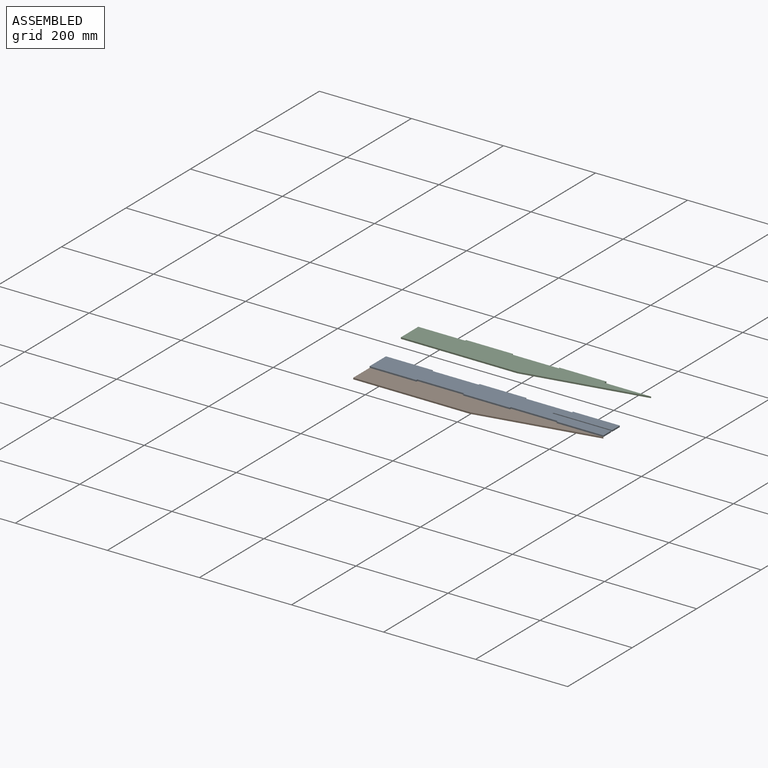
[diagram: assembled view]
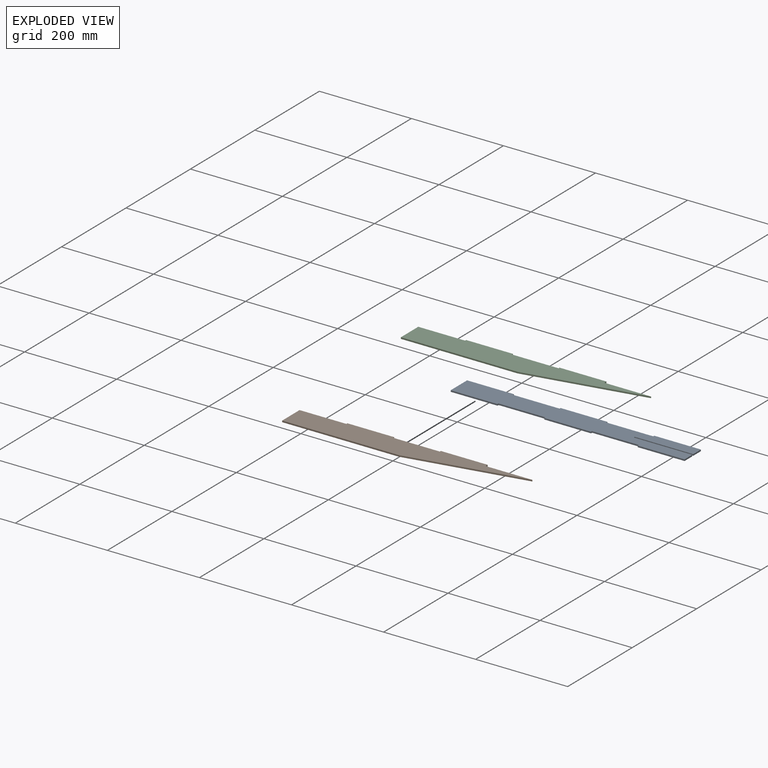
[diagram: exploded view]
GUIDED TOUR — MATED ASSEMBLY (Onshape document abafd52897b467cedcabfa32, AutoMate assembly abafd52897b467cedcabfa32_6b4f606bae9c35903e2a529e_ceaed7f654bc5eaee0819218_default)

This assembly has 3 components, labeled P0..P2 below (a component is one placed occurrence of a part; the same part can appear more than once), held together by 1 mate. A mate is a constraint between two components; its type names the relative motion it leaves free:
  FASTENED — locks the two components together rigidly (no relative motion).
Axis/direction vectors are unit vectors and 'through' points are millimeter coordinates, both in the assembly's world frame.

MATES
  1. FASTENED "Fastened 1": P0 <-> P1, direction (1.000, 0.000, 0.000) through (57.08, 80.30, -97.48) mm

ASSEMBLY ORDER
  1. P2 — the base component [order verified]
  2. P0 [order verified]
  3. P1 [order verified]
Order-tag legend:
  [order verified] — this step's position reverses a verified removal order: the component was checked to insert without passing through the ones already placed.

Of the 3 components, 3 carry the full construction recipe — the FeatureScript program that regenerates the part's solid from scratch; the rest are supplied as boundary geometry only.
Each toured component is shown spotlighted twice — in the assembled view, then in the exploded view, where a leader line traces a displaced component back to its assembled socket (saturated green if recipe-attached, orange if geometry-only; every other component desaturated gray) — followed by its recipe or geometry summary and the mates that hold it.
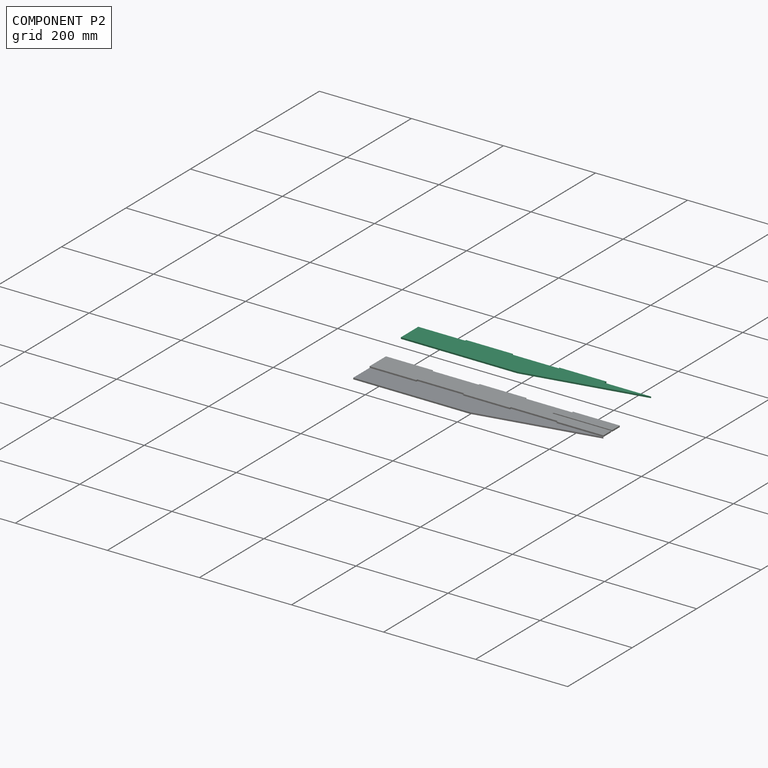
[diagram: component P2 — assembled]
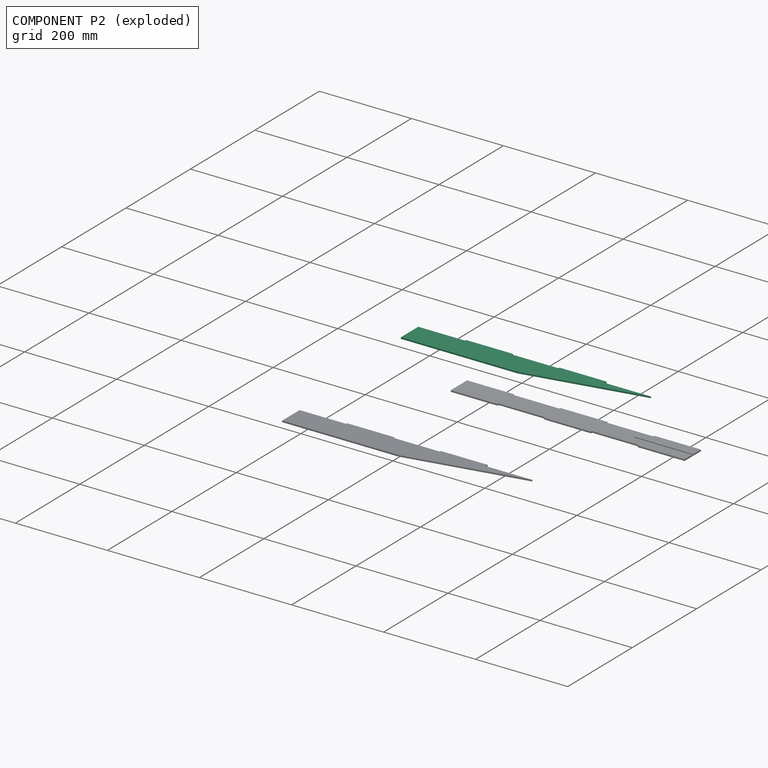
[diagram: component P2 — exploded]
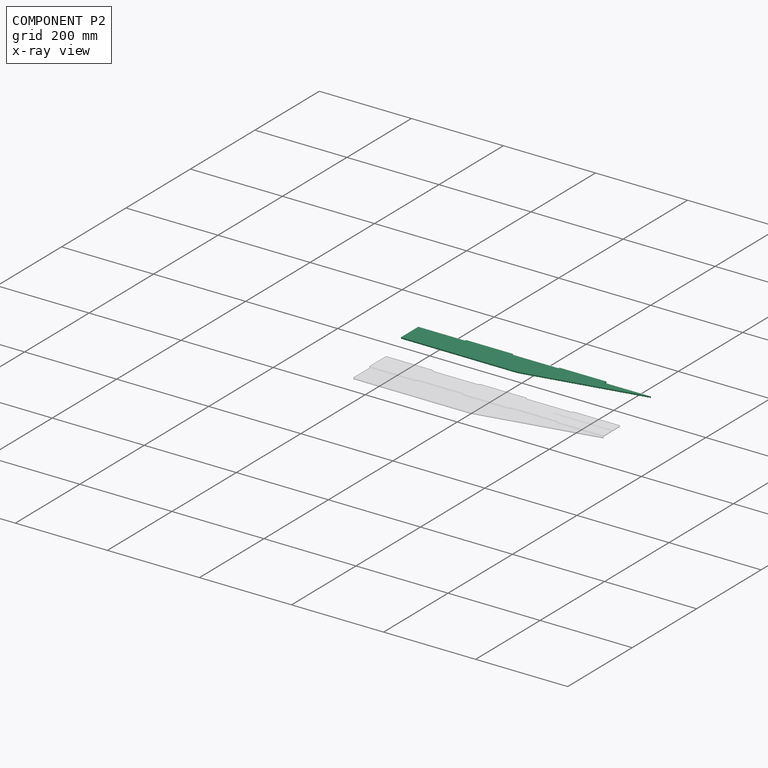
[diagram: component P2 — x-ray view]
COMPONENT P2 — same part as P1 (CADFS 00685697); its construction recipe is shown at P1.
Held by: no mates (free).
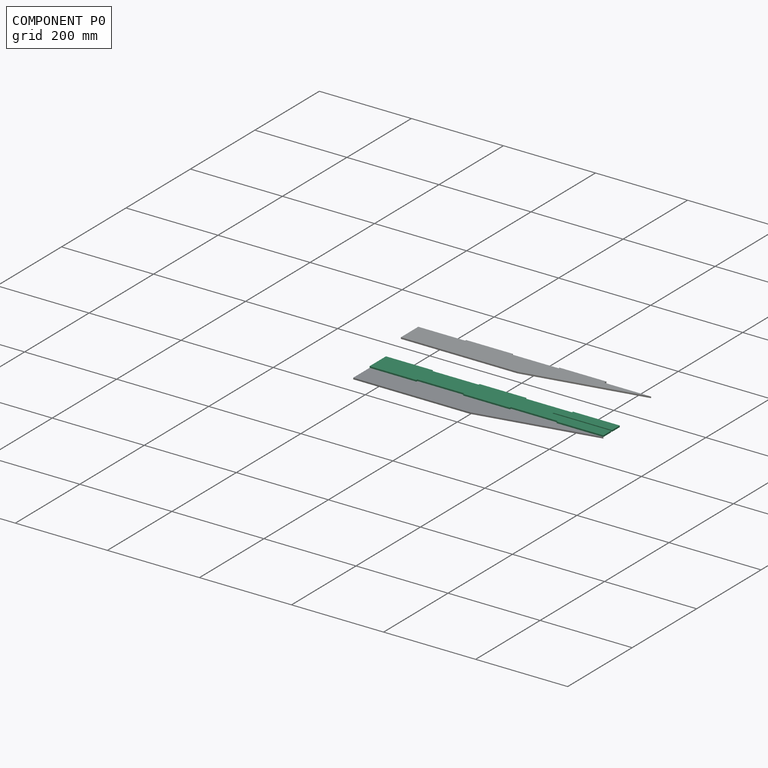
[diagram: component P0 — assembled]
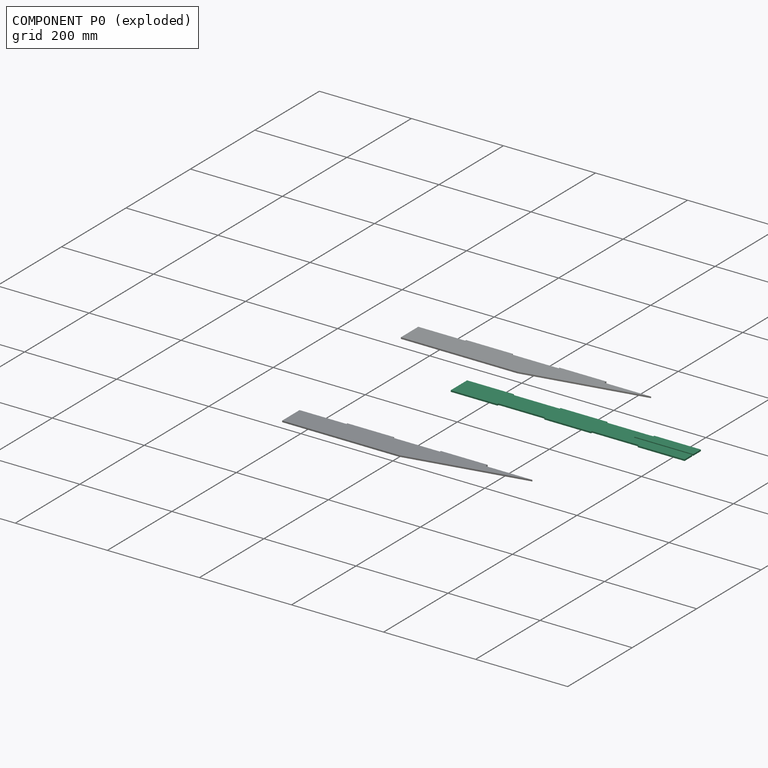
[diagram: component P0 — exploded]
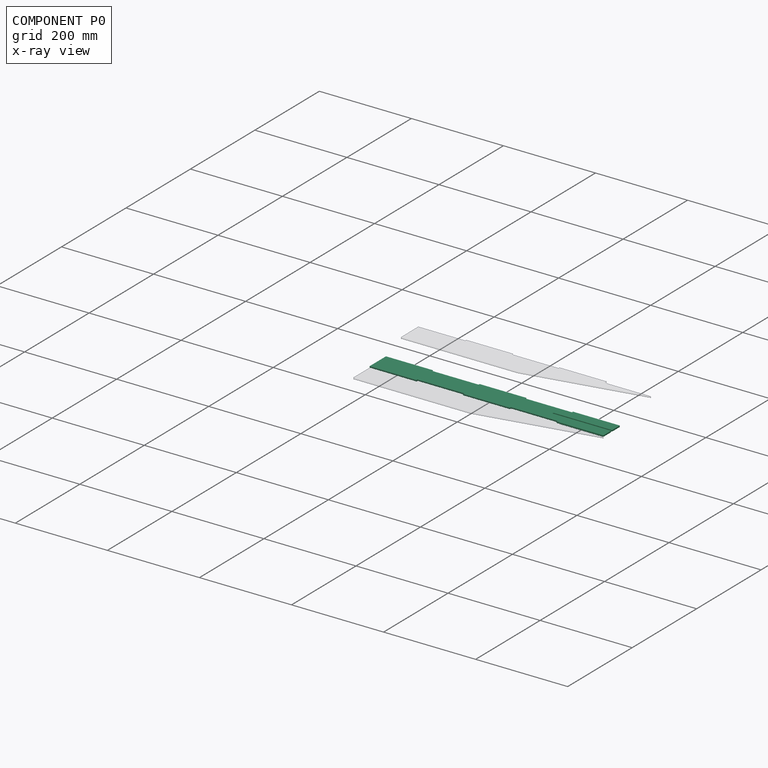
[diagram: component P0 — x-ray view]
COMPONENT P0 — recipe-attached (CADFS 00685299, mesh-verified: the recipe's output STEP matches this component's geometry to below the mesh-comparison resolution (tessellation chordal tolerance ~0.766 mm)).
Held by: FASTENED mate "Fastened 1" to P1.
Construction recipe (FeatureScript — the CAD program that rebuilds this solid; sketch coordinates are in the units given by the * unit suffixes, e.g. mm):

FeatureScript 1511;
import(path : "onshape/std/geometry.fs", version : "1511.0");
import(path : "onshape/std/common.fs", version : "1511.0");
const mm = millimeter;
const VERTEX = EntityType.VERTEX;
const EDGE = EntityType.EDGE;
const FACE = EntityType.FACE;
const BODY = EntityType.BODY;
function v(x, y){return vector(x, y);}
function OD(order){return orderDisambiguation(order);}
function OSD(set){return originalSetDisambiguation(set);}
function TD(topology){return topologyDisambiguation(topology);}
function TDD(query){return trueDependencyDisambiguation(query);}
function sQuery(a, b, c) {return sketchEntityQuery(a, b, c);}

annotation { "Feature Type Name" : "Feature", "Feature Type Description" : "" }
export const myFeature = defineFeature(function(context is Context, id is Id, definition is map)
    precondition{}
    {
        {
            var Q0;
            Q0=qCreatedBy(makeId("Top.planeOp"),FACE);
            var sketch = newSketch(context, id + "F0", { "sketchPlane" : qUnion([Q0])});
            skLineSegment(sketch, "E0.bottom", {"start": v(0, 0) * mm, "end": v(508, 0) * mm});
            skLineSegment(sketch, "E0.top", {"start": v(0, 50.8) * mm, "end": v(508, 50.8) * mm});
            skLineSegment(sketch, "E0.left", {"start": v(0, 0) * mm, "end": v(0, 50.8) * mm});
            skLineSegment(sketch, "E0.right", {"start": v(508, 0) * mm, "end": v(508, 50.8) * mm});
            skSolve(sketch);
        }
        {
            var Q0;
            Q0 = qSketchRegion(id + "F0", true);
            var Q1;
            Q1=makeQuery(id+"F0.imprint","IMPRINT",FACE,{"disambiguationData":[TD([[makeQuery(id+"F0.imprint","IMPRINT",EDGE,{"derivedFrom":sQuery(id+"F0.wireOp",EDGE,"E0.bottom")}),1.0]])]});
            extrude(context, id + "F1", {"entities" : qUnion([Q0, Q1]), "depth" : 3.17 * mm, "offsetDistance" : 25.4 * mm});
        }
        {
            var Q0;
            Q0=makeQuery(id+"F1.opExtrude","CAP_FACE",FACE,{"disambiguationData":[OSD([sQuery(id+"F0.wireOp",EDGE,"E0.bottom"),sQuery(id+"F0.wireOp",EDGE,"E0.top"),sQuery(id+"F0.wireOp",EDGE,"E0.left"),sQuery(id+"F0.wireOp",EDGE,"E0.right")])],"isStart":false});
            var sketch = newSketch(context, id + "F2", { "sketchPlane" : qUnion([Q0])});
            skLineSegment(sketch, "E1.bottom", {"start": v(101.6, 0) * mm, "end": v(203.2, 0) * mm});
            skLineSegment(sketch, "E1.top", {"start": v(101.6, 3.18) * mm, "end": v(203.2, 3.18) * mm});
            skLineSegment(sketch, "E1.left", {"start": v(101.6, 0) * mm, "end": v(101.6, 3.18) * mm});
            skLineSegment(sketch, "E1.right", {"start": v(203.2, 0) * mm, "end": v(203.2, 3.18) * mm});
            skLineSegment(sketch, "E2.bottom", {"start": v(304.8, 0) * mm, "end": v(406.4, 0) * mm});
            skLineSegment(sketch, "E2.top", {"start": v(304.8, 3.18) * mm, "end": v(406.4, 3.18) * mm});
            skLineSegment(sketch, "E2.left", {"start": v(304.8, 0) * mm, "end": v(304.8, 3.18) * mm});
            skLineSegment(sketch, "E2.right", {"start": v(406.4, 0) * mm, "end": v(406.4, 3.18) * mm});
            skSolve(sketch);
        }
        {
            var Q0;
            Q0 = qSketchRegion(id + "F2", true);
            extrude(context, id + "F3", {"entities" : qUnion([Q0]), "operationType" : NewBodyOperationType.REMOVE, "oppositeDirection" : true, "depth" : 25.4 * mm, "offsetDistance" : 25.4 * mm});
        }
        {
            var Q0;
            Q0=makeQuery(id+"F1.opExtrude","CAP_FACE",FACE,{"disambiguationData":[OSD([sQuery(id+"F0.wireOp",EDGE,"E0.bottom"),sQuery(id+"F0.wireOp",EDGE,"E0.top"),sQuery(id+"F0.wireOp",EDGE,"E0.left"),sQuery(id+"F0.wireOp",EDGE,"E0.right")])],"isStart":false});
            var sketch = newSketch(context, id + "F4", { "sketchPlane" : qUnion([Q0])});
            skLineSegment(sketch, "E3.bottom", {"start": v(101.6, 50.8) * mm, "end": v(203.2, 50.8) * mm});
            skLineSegment(sketch, "E3.top", {"start": v(101.6, 47.63) * mm, "end": v(203.2, 47.63) * mm});
            skLineSegment(sketch, "E3.left", {"start": v(101.6, 50.8) * mm, "end": v(101.6, 47.63) * mm});
            skLineSegment(sketch, "E3.right", {"start": v(203.2, 50.8) * mm, "end": v(203.2, 47.63) * mm});
            skLineSegment(sketch, "E4.bottom", {"start": v(304.8, 50.8) * mm, "end": v(406.4, 50.8) * mm});
            skLineSegment(sketch, "E4.top", {"start": v(304.8, 47.63) * mm, "end": v(406.4, 47.63) * mm});
            skLineSegment(sketch, "E4.left", {"start": v(304.8, 50.8) * mm, "end": v(304.8, 47.63) * mm});
            skLineSegment(sketch, "E4.right", {"start": v(406.4, 50.8) * mm, "end": v(406.4, 47.63) * mm});
            skSolve(sketch);
        }
        {
            var Q0;
            Q0 = qSketchRegion(id + "F4", true);
            extrude(context, id + "F5", {"entities" : qUnion([Q0]), "operationType" : NewBodyOperationType.REMOVE, "oppositeDirection" : true, "depth" : 25.4 * mm, "offsetDistance" : 25.4 * mm});
        }
        {
            var Q0;
            Q0=makeQuery(id+"F1.opExtrude","CAP_FACE",FACE,{"disambiguationData":[OSD([sQuery(id+"F0.wireOp",EDGE,"E0.bottom"),sQuery(id+"F0.wireOp",EDGE,"E0.top"),sQuery(id+"F0.wireOp",EDGE,"E0.left"),sQuery(id+"F0.wireOp",EDGE,"E0.right")])],"isStart":false});
            var sketch = newSketch(context, id + "F6", { "sketchPlane" : qUnion([Q0])});
            skLineSegment(sketch, "E5.bottom", {"start": v(508, 23.81) * mm, "end": v(381, 23.81) * mm});
            skLineSegment(sketch, "E5.top", {"start": v(508, 26.99) * mm, "end": v(381, 26.99) * mm});
            skLineSegment(sketch, "E5.left", {"start": v(508, 23.81) * mm, "end": v(508, 26.99) * mm});
            skLineSegment(sketch, "E5.right", {"start": v(381, 23.81) * mm, "end": v(381, 26.99) * mm});
            skSolve(sketch);
        }
        {
            var Q0;
            Q0 = qSketchRegion(id + "F6", true);
            extrude(context, id + "F7", {"entities" : qUnion([Q0]), "operationType" : NewBodyOperationType.REMOVE, "oppositeDirection" : true, "depth" : 25.4 * mm, "offsetDistance" : 25.4 * mm});
        }
    });
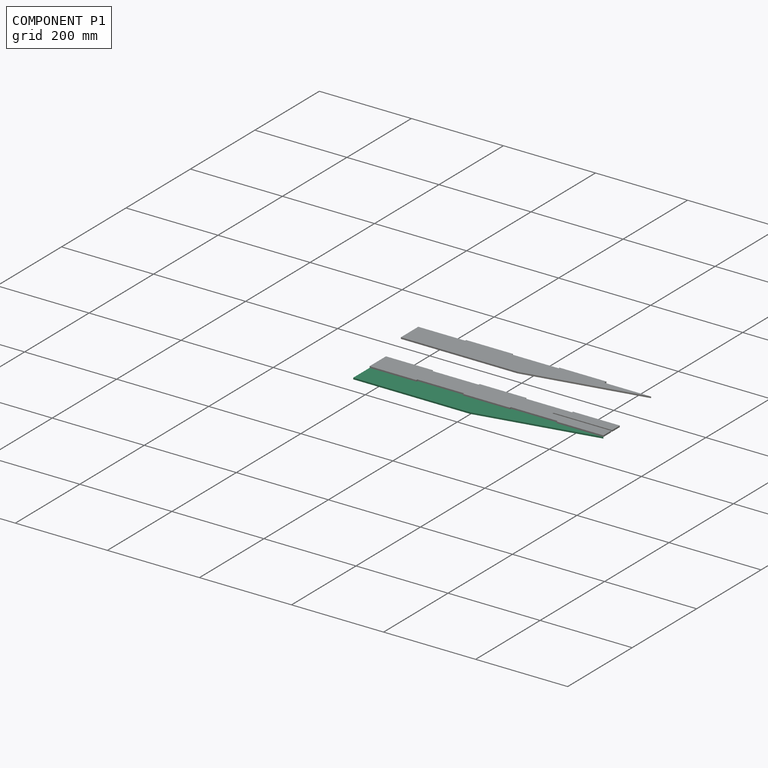
[diagram: component P1 — assembled]
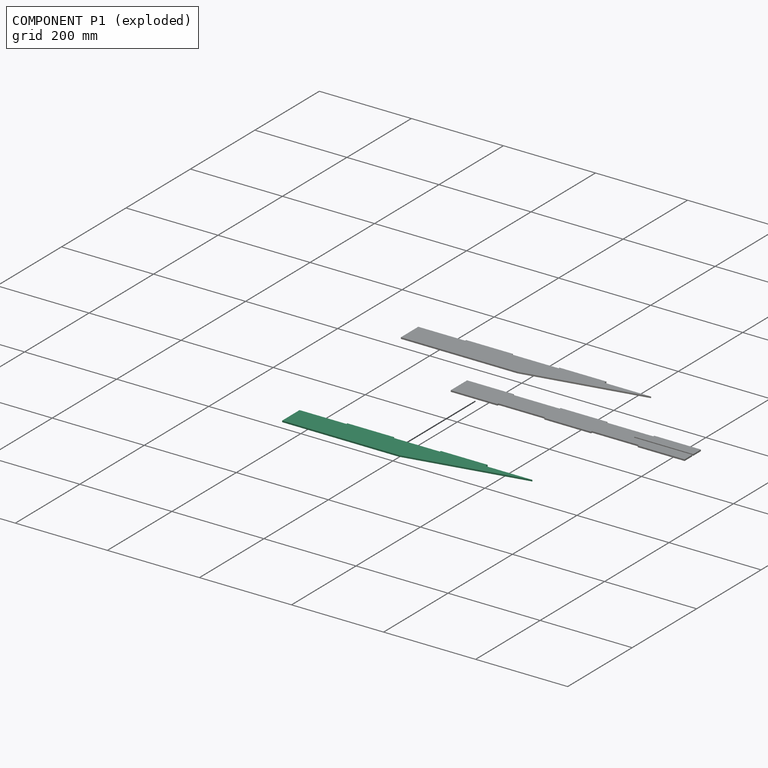
[diagram: component P1 — exploded]
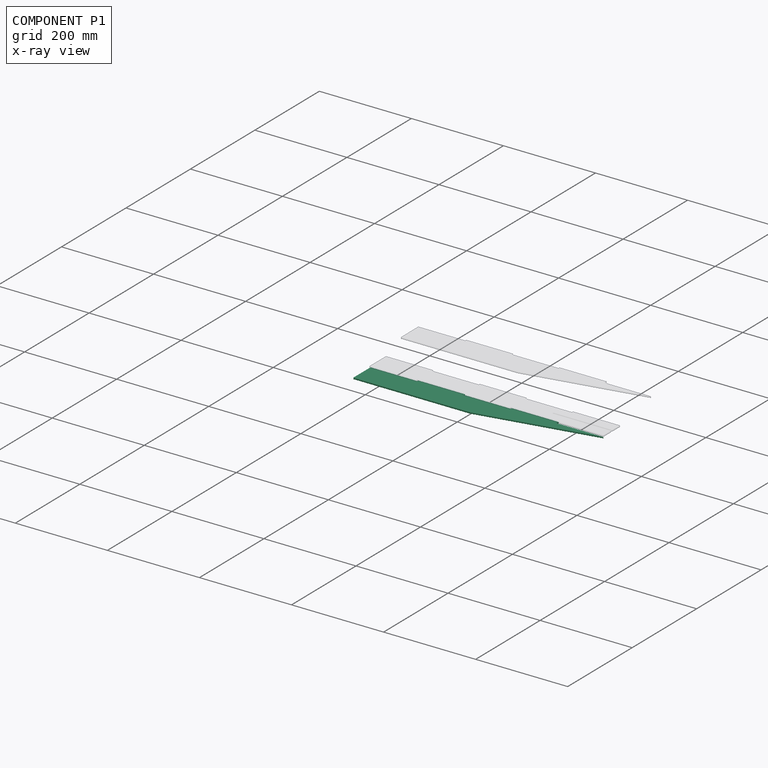
[diagram: component P1 — x-ray view]
COMPONENT P1 — recipe-attached (CADFS 00685697, mesh-verified: the recipe's output STEP matches this component's geometry to below the mesh-comparison resolution (tessellation chordal tolerance ~0.767 mm)).
Held by: FASTENED mate "Fastened 1" to P0.
Construction recipe (FeatureScript — the CAD program that rebuilds this solid; sketch coordinates are in the units given by the * unit suffixes, e.g. mm):

FeatureScript 1511;
import(path : "onshape/std/geometry.fs", version : "1511.0");
import(path : "onshape/std/common.fs", version : "1511.0");
const mm = millimeter;
const VERTEX = EntityType.VERTEX;
const EDGE = EntityType.EDGE;
const FACE = EntityType.FACE;
const BODY = EntityType.BODY;
function v(x, y){return vector(x, y);}
function OD(order){return orderDisambiguation(order);}
function OSD(set){return originalSetDisambiguation(set);}
function TD(topology){return topologyDisambiguation(topology);}
function TDD(query){return trueDependencyDisambiguation(query);}
function sQuery(a, b, c) {return sketchEntityQuery(a, b, c);}

annotation { "Feature Type Name" : "Feature", "Feature Type Description" : "" }
export const myFeature = defineFeature(function(context is Context, id is Id, definition is map)
    precondition{}
    {
        {
            var Q0;
            Q0=qCreatedBy(makeId("Top.planeOp"),FACE);
            var sketch = newSketch(context, id + "F0", { "sketchPlane" : qUnion([Q0])});
            skLineSegment(sketch, "E0.bottom", {"start": v(0, 0) * mm, "end": v(508, 0) * mm});
            skLineSegment(sketch, "E0.top", {"start": v(0, 57.15) * mm, "end": v(508, 57.15) * mm});
            skLineSegment(sketch, "E0.left", {"start": v(0, 0) * mm, "end": v(0, 57.15) * mm});
            skLineSegment(sketch, "E0.right", {"start": v(508, 0) * mm, "end": v(508, 57.15) * mm});
            skSolve(sketch);
        }
        {
            var Q0;
            Q0 = qSketchRegion(id + "F0", true);
            var Q1;
            Q1=makeQuery(id+"F0.imprint","IMPRINT",FACE,{"disambiguationData":[TD([[makeQuery(id+"F0.imprint","IMPRINT",EDGE,{"derivedFrom":sQuery(id+"F0.wireOp",EDGE,"E0.bottom")}),1.0]])]});
            extrude(context, id + "F1", {"entities" : qUnion([Q0, Q1]), "depth" : 3.17 * mm, "offsetDistance" : 25.4 * mm});
        }
        {
            var Q0;
            Q0=makeQuery(id+"F1.opExtrude","CAP_FACE",FACE,{"disambiguationData":[OSD([sQuery(id+"F0.wireOp",EDGE,"E0.bottom"),sQuery(id+"F0.wireOp",EDGE,"E0.top"),sQuery(id+"F0.wireOp",EDGE,"E0.left"),sQuery(id+"F0.wireOp",EDGE,"E0.right")])],"isStart":false});
            var sketch = newSketch(context, id + "F2", { "sketchPlane" : qUnion([Q0])});
            skLineSegment(sketch, "E1.left", {"start": v(101.6, 57.15) * mm, "end": v(101.6, 53.98) * mm});
            skLineSegment(sketch, "E1.right", {"start": v(203.2, 57.15) * mm, "end": v(203.2, 53.98) * mm});
            skLineSegment(sketch, "E2.left", {"start": v(304.8, 57.15) * mm, "end": v(304.8, 53.98) * mm});
            skLineSegment(sketch, "E2.right", {"start": v(406.4, 57.15) * mm, "end": v(406.4, 53.98) * mm});
            skLineSegment(sketch, "E3.bottom", {"start": v(101.6, 53.98) * mm, "end": v(0, 53.98) * mm});
            skLineSegment(sketch, "E3.top", {"start": v(101.6, 57.15) * mm, "end": v(0, 57.15) * mm});
            skLineSegment(sketch, "E3.left", {"start": v(101.6, 53.98) * mm, "end": v(101.6, 57.15) * mm});
            skLineSegment(sketch, "E3.right", {"start": v(0, 53.98) * mm, "end": v(0, 57.15) * mm});
            skLineSegment(sketch, "E4.bottom", {"start": v(203.2, 53.98) * mm, "end": v(304.8, 53.98) * mm});
            skLineSegment(sketch, "E4.top", {"start": v(203.2, 57.15) * mm, "end": v(304.8, 57.15) * mm});
            skLineSegment(sketch, "E4.left", {"start": v(203.2, 53.98) * mm, "end": v(203.2, 57.15) * mm});
            skLineSegment(sketch, "E4.right", {"start": v(304.8, 53.98) * mm, "end": v(304.8, 57.15) * mm});
            skLineSegment(sketch, "E5.bottom", {"start": v(406.4, 53.98) * mm, "end": v(508, 53.98) * mm});
            skLineSegment(sketch, "E5.top", {"start": v(406.4, 57.15) * mm, "end": v(508, 57.15) * mm});
            skLineSegment(sketch, "E5.left", {"start": v(406.4, 53.98) * mm, "end": v(406.4, 57.15) * mm});
            skLineSegment(sketch, "E5.right", {"start": v(508, 53.98) * mm, "end": v(508, 57.15) * mm});
            skSolve(sketch);
        }
        {
            var Q0;
            Q0=makeQuery(id+"F1.opExtrude","CAP_FACE",FACE,{"disambiguationData":[OSD([sQuery(id+"F0.wireOp",EDGE,"E0.bottom"),sQuery(id+"F0.wireOp",EDGE,"E0.top"),sQuery(id+"F0.wireOp",EDGE,"E0.left"),sQuery(id+"F0.wireOp",EDGE,"E0.right")])],"isStart":false});
            var sketch = newSketch(context, id + "F3", { "sketchPlane" : qUnion([Q0])});
            skLineSegment(sketch, "E6", {"start": v(254, 0) * mm, "end": v(508, 50.8) * mm});
            skLineSegment(sketch, "E7", {"start": v(254, 0) * mm, "end": v(508, 0) * mm});
            skLineSegment(sketch, "E8", {"start": v(508, 0) * mm, "end": v(508, 57.15) * mm});
            skSolve(sketch);
        }
        {
            var Q0;
            {var subQ0=sQuery(id+"F3.wireOp",EDGE,"E6");Q0=makeQuery(id+"F3.imprint","IMPRINT",FACE,{"disambiguationData":[TD([[makeQuery(id+"F3.imprint","IMPRINT",EDGE,{"derivedFrom":subQ0}),-1.0]])]});}
            extrude(context, id + "F4", {"entities" : qUnion([Q0]), "operationType" : NewBodyOperationType.REMOVE, "oppositeDirection" : true, "depth" : 25.4 * mm, "offsetDistance" : 25.4 * mm});
        }
        {
            var Q0;
            Q0 = qSketchRegion(id + "F2", true);
            extrude(context, id + "F5", {"entities" : qUnion([Q0]), "operationType" : NewBodyOperationType.REMOVE, "oppositeDirection" : true, "depth" : 25.4 * mm, "offsetDistance" : 25.4 * mm});
        }
        {
            var Q0;
            Q0=makeQuery(id+"F1.opExtrude","CAP_FACE",FACE,{"disambiguationData":[OSD([sQuery(id+"F0.wireOp",EDGE,"E0.bottom"),sQuery(id+"F0.wireOp",EDGE,"E0.top"),sQuery(id+"F0.wireOp",EDGE,"E0.left"),sQuery(id+"F0.wireOp",EDGE,"E0.right")])],"isStart":false});
            var sketch = newSketch(context, id + "F6", { "sketchPlane" : qUnion([Q0])});
            skLineSegment(sketch, "E9.bottom", {"start": v(508, 50.8) * mm, "end": v(406.4, 50.8) * mm});
            skLineSegment(sketch, "E9.top", {"start": v(508, 53.98) * mm, "end": v(406.4, 53.98) * mm});
            skLineSegment(sketch, "E9.left", {"start": v(508, 50.8) * mm, "end": v(508, 53.98) * mm});
            skLineSegment(sketch, "E9.right", {"start": v(406.4, 50.8) * mm, "end": v(406.4, 53.98) * mm});
            skSolve(sketch);
        }
        {
            var Q0;
            Q0 = qSketchRegion(id + "F6", true);
            extrude(context, id + "F7", {"entities" : qUnion([Q0]), "operationType" : NewBodyOperationType.REMOVE, "oppositeDirection" : true, "depth" : 25.4 * mm, "offsetDistance" : 25.4 * mm});
        }
    });
PROVENANCE & LICENSES
Assembly (occurrences, transforms, mates, per-part STEP geometry): AutoMate dataset, Zenodo record 7776208, CC0.
Construction recipes: CADFS (HuggingFace VladPyatov/CADFS, CC-BY-4.0, layered over the ABC dataset), FeatureScript reconstruction programs keyed by ABC model id.
Join: ABC meta listings map ABC model id -> Onshape documentId; within a shared document, parts are matched by geometric signature (bounding-box dims + volume at 0.1% relative tolerance, exact B-rep face/solid counts).
Verification: 3 of this assembly's 3 components carry a recipe attachment, and every attachment is mesh-verified: the CADFS STEP and the AutoMate member STEP were compared as meshes in their shared local frame (symmetric sampled-point-to-mesh distance); worst across the 3 attachments: below the mesh-comparison resolution (tessellation chordal tolerance ~0.767 mm) on a 511 mm part.
Renders: orthographic iso camera (az 35 / el 25); the floor grid conveys scale (grid pitch printed in each image; no ruler). In the exploded view each component is displaced by its stored offset vector: the offsets alone carry the explosion direction (mate normal/axis signs are not orientation cues and do not encode it), and separation distances are assigned per mate-chain, not proportionally to assembly-order depth.
